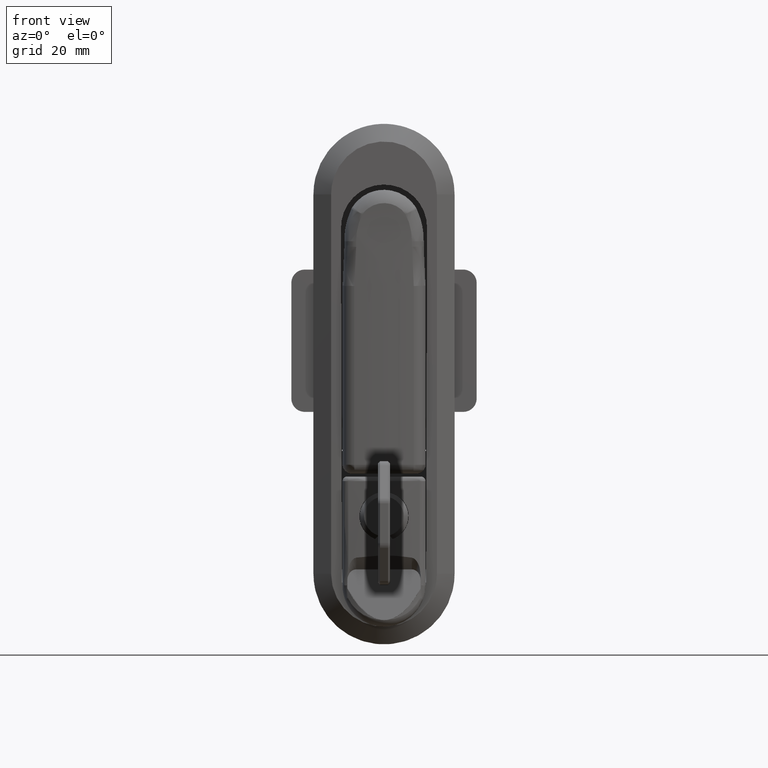
[diagram: clean part render]
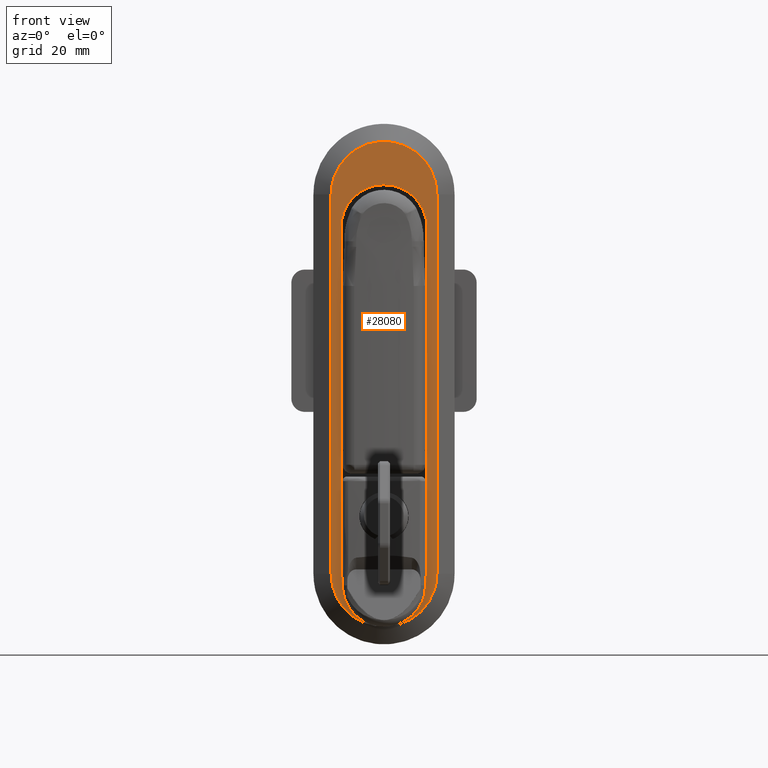
[diagram: same view with one face highlighted and labeled with its STEP entity id]
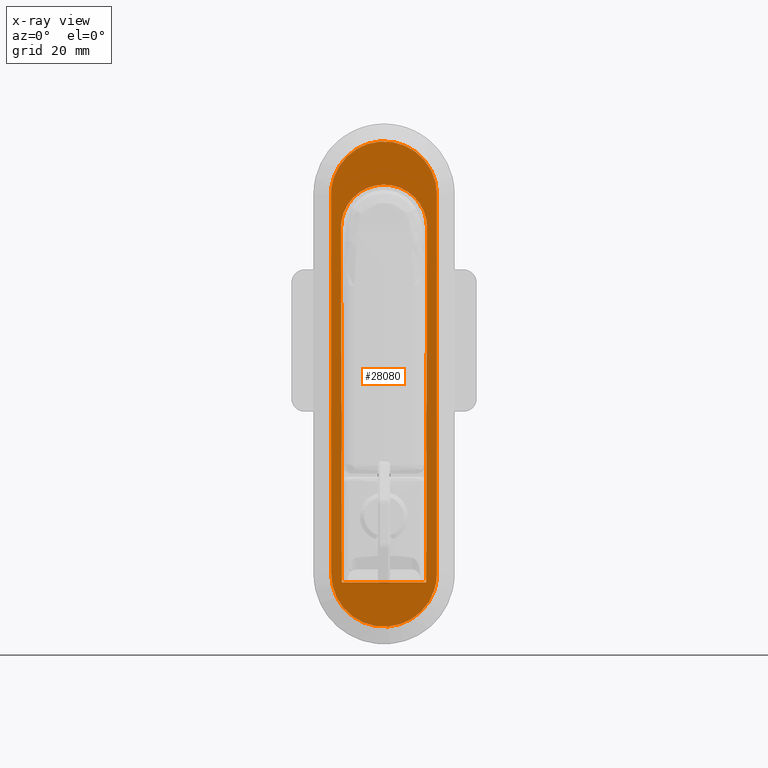
[diagram: x-ray of the same camera — body ghosted, the highlighted face saturated]
A machine part, front view. The second image highlights one B-rep face of the part: STEP entity #28080.
The next image is the same camera in x-ray: the body ghosted, the highlighted face saturated — about 0% of this face is hidden behind the body in this view.
In plain terms, the highlighted face is a freeform B-spline surface patch.
Its self-contained STEP definition (entity closure, byte-faithful):
#26253=CARTESIAN_POINT('',(-5.000000000001080,9.547485513767439,-80.200000000192901));
#26254=VERTEX_POINT('',#26253);
#26262=CARTESIAN_POINT('',(-5.000000000001080,-9.547485513764071,-80.200000000192901));
#26263=VERTEX_POINT('',#26262);
#26264=CARTESIAN_POINT('',(-5.000000000001080,-9.547485513764071,-80.200000000192901));
#26265=CARTESIAN_POINT('',(-5.000000000001080,9.547485513767439,-80.200000000192901));
#26266=QUASI_UNIFORM_CURVE('',1,(#26264,#26265),.UNSPECIFIED.,.F.,.U.);
#26267=EDGE_CURVE('',#26263,#26254,#26266,.T.);
#26363=CARTESIAN_POINT('',(-5.000000000001080,12.000000001391619,-78.199999999503092));
#26364=VERTEX_POINT('',#26363);
#26391=CARTESIAN_POINT('',(-5.000000000001080,-11.999999998608340,-78.199999999505195));
#26392=VERTEX_POINT('',#26391);
#26398=CARTESIAN_POINT('',(-5.000000000001080,12.000000001391619,-78.199999999503092));
#26399=CARTESIAN_POINT('',(-5.000000000001080,12.000000000625995,-85.128203229779004));
#26400=CARTESIAN_POINT('',(-5.000000000001080,6.000000000626917,-88.592304844916924));
#26401=CARTESIAN_POINT('',(-5.000000000001080,6.272051E-010,-92.056406460055229));
#26402=CARTESIAN_POINT('',(-5.000000000001080,-5.999999999373118,-88.592304844917976));
#26403=CARTESIAN_POINT('',(-5.000000000001080,-11.999999999374010,-85.128203229780382));
#26404=CARTESIAN_POINT('',(-5.000000000001080,-11.999999998608340,-78.199999999505195));
#26412=(BOUNDED_CURVE()B_SPLINE_CURVE(2,(#26398,#26399,#26400,#26401,#26402,#26403,#26404),.UNSPECIFIED.,.F.,.U.)B_SPLINE_CURVE_WITH_KNOTS((3,2,2,3),(0.0,0.333333333333333,0.666666666666667,1.0),.UNSPECIFIED.)CURVE()GEOMETRIC_REPRESENTATION_ITEM()RATIONAL_B_SPLINE_CURVE((1.0,0.866025403784461,1.0,0.866025403784461,1.0,0.866025403784461,1.0))REPRESENTATION_ITEM(''));
#26413=EDGE_CURVE('',#26364,#26392,#26412,.T.);
#26425=CARTESIAN_POINT('',(-5.000000000001080,-11.999999998615721,7.800000000037410));
#26426=VERTEX_POINT('',#26425);
#26432=CARTESIAN_POINT('',(-5.000000000001080,-11.999999998608340,-78.199999999505195));
#26433=CARTESIAN_POINT('',(-5.000000000001080,-11.999999998615721,7.800000000037410));
#26434=QUASI_UNIFORM_CURVE('',1,(#26432,#26433),.UNSPECIFIED.,.F.,.U.);
#26435=EDGE_CURVE('',#26392,#26426,#26434,.T.);
#26451=CARTESIAN_POINT('',(-5.000000000001080,12.000000001384240,7.800000000037070));
#26452=VERTEX_POINT('',#26451);
#26466=CARTESIAN_POINT('',(-5.000000000001080,12.000000001384240,7.800000000037070));
#26467=CARTESIAN_POINT('',(-5.000000000001080,12.000000001391619,-78.199999999503092));
#26468=QUASI_UNIFORM_CURVE('',1,(#26466,#26467),.UNSPECIFIED.,.F.,.U.);
#26469=EDGE_CURVE('',#26452,#26364,#26468,.T.);
#26509=CARTESIAN_POINT('',(-5.000000000001080,-11.999999998615721,7.800000000037410));
#26510=CARTESIAN_POINT('',(-5.000000000001081,-11.999999998615808,14.728203230312994));
#26511=CARTESIAN_POINT('',(-5.000000000001080,-5.999999998615709,18.192304845450732));
#26512=CARTESIAN_POINT('',(-5.000000000001081,1.384389E-009,21.656406460588464));
#26513=CARTESIAN_POINT('',(-5.000000000001080,6.000000001384390,18.192304845450561));
#26514=CARTESIAN_POINT('',(-5.000000000001081,12.000000001384191,14.728203230312765));
#26515=CARTESIAN_POINT('',(-5.000000000001080,12.000000001384240,7.800000000037070));
#26523=(BOUNDED_CURVE()B_SPLINE_CURVE(2,(#26509,#26510,#26511,#26512,#26513,#26514,#26515),.UNSPECIFIED.,.F.,.U.)B_SPLINE_CURVE_WITH_KNOTS((3,2,2,3),(0.0,0.333333333333333,0.666666666666667,1.0),.UNSPECIFIED.)CURVE()GEOMETRIC_REPRESENTATION_ITEM()RATIONAL_B_SPLINE_CURVE((1.0,0.866025403784436,1.0,0.866025403784436,1.0,0.866025403784436,1.0))REPRESENTATION_ITEM(''));
#26524=EDGE_CURVE('',#26426,#26452,#26523,.T.);
#27451=CARTESIAN_POINT('',(-5.000000000001120,-9.748315840098300,-0.431213318262666));
#27452=VERTEX_POINT('',#27451);
#27453=CARTESIAN_POINT('',(-5.000000000001080,-9.547485513764071,-80.200000000192901));
#27454=CARTESIAN_POINT('',(-5.000000000001120,-9.748315840098300,-0.431213318262666));
#27455=QUASI_UNIFORM_CURVE('',1,(#27453,#27454),.UNSPECIFIED.,.F.,.U.);
#27456=EDGE_CURVE('',#26263,#27452,#27455,.T.);
#27471=CARTESIAN_POINT('',(-5.000000000001120,9.748315839861659,-0.431213413543236));
#27472=VERTEX_POINT('',#27471);
#27473=CARTESIAN_POINT('',(-5.000000000001120,9.748315839861659,-0.431213413543236));
#27474=CARTESIAN_POINT('',(-5.000000000001080,9.547485513767439,-80.200000000192901));
#27475=QUASI_UNIFORM_CURVE('',1,(#27473,#27474),.UNSPECIFIED.,.F.,.U.);
#27476=EDGE_CURVE('',#27472,#26254,#27475,.T.);
#27528=CARTESIAN_POINT('',(-5.000000000001080,-9.749969098756621,-0.274547063518264));
#27529=VERTEX_POINT('',#27528);
#27535=CARTESIAN_POINT('',(-5.000000000001120,-9.749969098756621,0.225452936487388));
#27536=VERTEX_POINT('',#27535);
#27537=CARTESIAN_POINT('',(-5.000000000001080,-9.749969098756621,-0.274547063518264));
#27538=CARTESIAN_POINT('',(-5.000000000001120,-9.749969098756621,0.225452936487388));
#27539=QUASI_UNIFORM_CURVE('',1,(#27537,#27538),.UNSPECIFIED.,.F.,.U.);
#27540=EDGE_CURVE('',#27529,#27536,#27539,.T.);
#27575=CARTESIAN_POINT('',(-5.000000000001120,9.749969100291200,-0.225452936412381));
#27576=VERTEX_POINT('',#27575);
#27577=CARTESIAN_POINT('',(-5.000000000001120,9.749969100291180,-0.225452936412378));
#27578=CARTESIAN_POINT('',(-5.000000000001120,9.750228139254050,-0.328341898197725));
#27579=CARTESIAN_POINT('',(-5.000000000001120,9.748315839861656,-0.431213413543234));
#27587=(BOUNDED_CURVE()B_SPLINE_CURVE(2,(#27577,#27578,#27579),.UNSPECIFIED.,.F.,.U.)CURVE()GEOMETRIC_REPRESENTATION_ITEM()QUASI_UNIFORM_CURVE()RATIONAL_B_SPLINE_CURVE((1.0,0.999944324410379,1.0))REPRESENTATION_ITEM(''));
#27588=EDGE_CURVE('',#27576,#27472,#27587,.T.);
#27607=CARTESIAN_POINT('',(-5.000000000001120,-9.748315840098302,-0.431213318262667));
#27608=CARTESIAN_POINT('',(-5.000000000001120,-9.749771866203915,-0.352886832752642));
#27609=CARTESIAN_POINT('',(-5.000000000001080,-9.749969098756621,-0.274547063518264));
#27617=(BOUNDED_CURVE()B_SPLINE_CURVE(2,(#27607,#27608,#27609),.UNSPECIFIED.,.F.,.U.)CURVE()GEOMETRIC_REPRESENTATION_ITEM()QUASI_UNIFORM_CURVE()RATIONAL_B_SPLINE_CURVE((1.0,0.999967721966060,1.0))REPRESENTATION_ITEM(''));
#27618=EDGE_CURVE('',#27452,#27529,#27617,.T.);
#27666=CARTESIAN_POINT('',(-5.000000000001120,9.749969100291200,0.225452936487188));
#27667=VERTEX_POINT('',#27666);
#27673=CARTESIAN_POINT('',(-5.000000000001120,9.749969100291200,0.225452936487188));
#27674=CARTESIAN_POINT('',(-5.000000000001120,9.749969100291200,-0.225452936412381));
#27675=QUASI_UNIFORM_CURVE('',1,(#27673,#27674),.UNSPECIFIED.,.F.,.U.);
#27676=EDGE_CURVE('',#27667,#27576,#27675,.T.);
#27719=CARTESIAN_POINT('',(-5.000000000001120,-9.749969098756637,0.225452936487393));
#27720=CARTESIAN_POINT('',(-5.000000000001120,-9.764168832901712,5.865515294815559));
#27721=CARTESIAN_POINT('',(-5.000000000001120,-4.882084416067156,8.689653532434479));
#27722=CARTESIAN_POINT('',(-5.000000000001120,7.673939E-010,11.513791770053396));
#27723=CARTESIAN_POINT('',(-5.000000000001120,4.882084417601883,8.689653532434374));
#27724=CARTESIAN_POINT('',(-5.000000000001120,9.764168834436367,5.865515294815349));
#27725=CARTESIAN_POINT('',(-5.000000000001120,9.749969100291180,0.225452936487188));
#27733=(BOUNDED_CURVE()B_SPLINE_CURVE(2,(#27719,#27720,#27721,#27722,#27723,#27724,#27725),.UNSPECIFIED.,.F.,.U.)B_SPLINE_CURVE_WITH_KNOTS((3,2,2,3),(0.0,0.333333333333333,0.666666666666667,1.0),.UNSPECIFIED.)CURVE()GEOMETRIC_REPRESENTATION_ITEM()RATIONAL_B_SPLINE_CURVE((1.0,0.865605490502259,1.0,0.865605490502259,1.0,0.865605490502259,1.0))REPRESENTATION_ITEM(''));
#27734=EDGE_CURVE('',#27536,#27667,#27733,.T.);
#28059=CARTESIAN_POINT('',(-5.000000000001080,13.198799954875330,25.294499393815912));
#28060=CARTESIAN_POINT('',(-5.000000000001080,-13.198800595829590,25.294499393815912));
#28061=CARTESIAN_POINT('',(-5.000000000001080,13.198799954875330,-95.694494475899532));
#28062=CARTESIAN_POINT('',(-5.000000000001080,-13.198800595829590,-95.694494475899532));
#28063=B_SPLINE_SURFACE_WITH_KNOTS('',1,1,((#28059,#28061),(#28060,#28062)),.UNSPECIFIED.,.F.,.F.,.U.,(2,2),(2,2),(0.0,26.397600550704919),(0.0,120.988993869715400),.UNSPECIFIED.);
#28064=ORIENTED_EDGE('',*,*,#26469,.T.);
#28065=ORIENTED_EDGE('',*,*,#26413,.T.);
#28066=ORIENTED_EDGE('',*,*,#26435,.T.);
#28067=ORIENTED_EDGE('',*,*,#26524,.T.);
#28068=EDGE_LOOP('',(#28064,#28065,#28066,#28067));
#28069=FACE_OUTER_BOUND('',#28068,.T.);
#28070=ORIENTED_EDGE('',*,*,#27456,.F.);
#28071=ORIENTED_EDGE('',*,*,#26267,.T.);
#28072=ORIENTED_EDGE('',*,*,#27476,.F.);
#28073=ORIENTED_EDGE('',*,*,#27588,.F.);
#28074=ORIENTED_EDGE('',*,*,#27676,.F.);
#28075=ORIENTED_EDGE('',*,*,#27734,.F.);
#28076=ORIENTED_EDGE('',*,*,#27540,.F.);
#28077=ORIENTED_EDGE('',*,*,#27618,.F.);
#28078=EDGE_LOOP('',(#28070,#28071,#28072,#28073,#28074,#28075,#28076,#28077));
#28079=FACE_BOUND('',#28078,.T.);
#28080=ADVANCED_FACE('',(#28069,#28079),#28063,.F.);